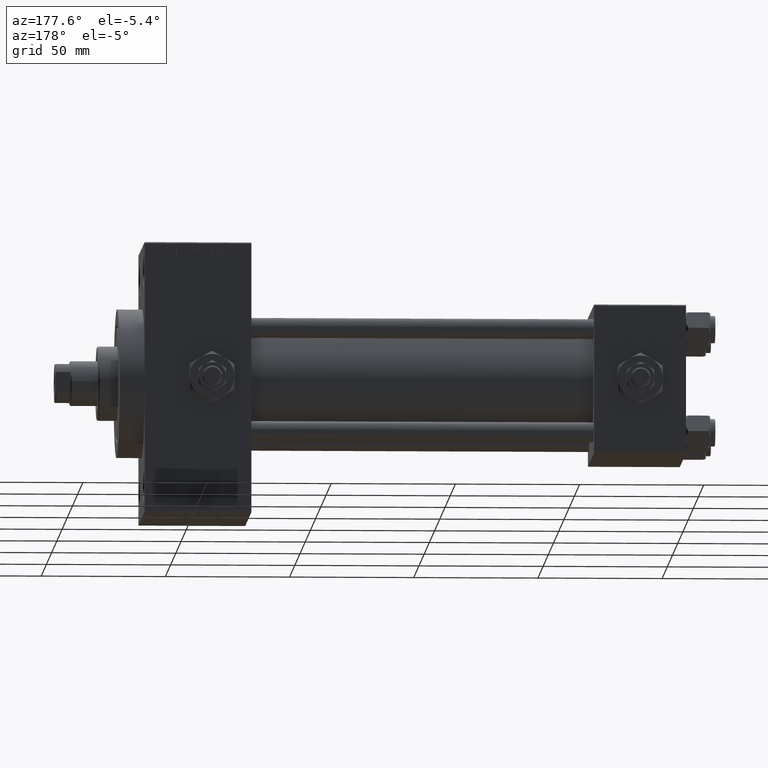
[diagram: clean part render]
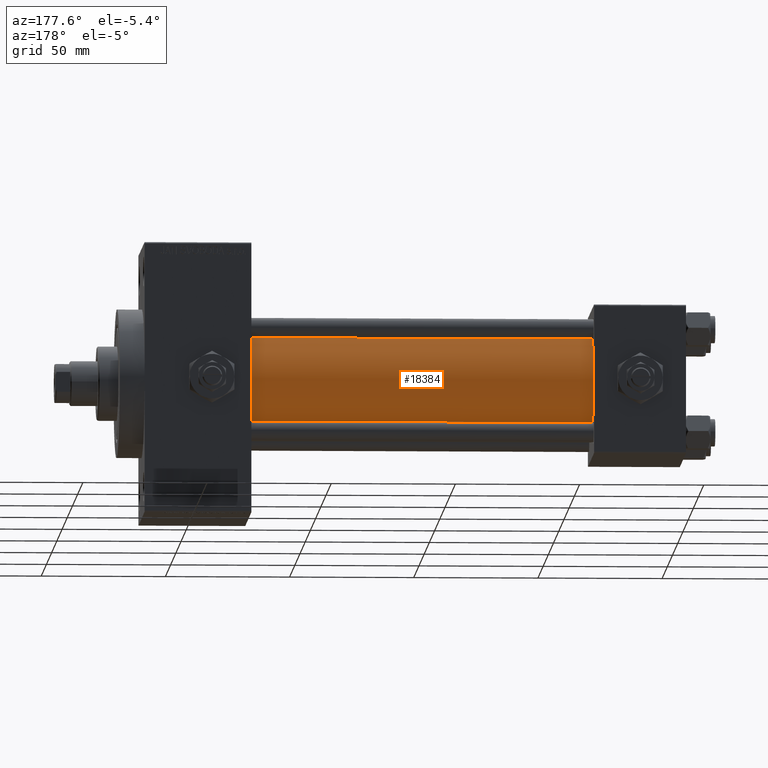
[diagram: same view with one face highlighted and labeled with its STEP entity id]
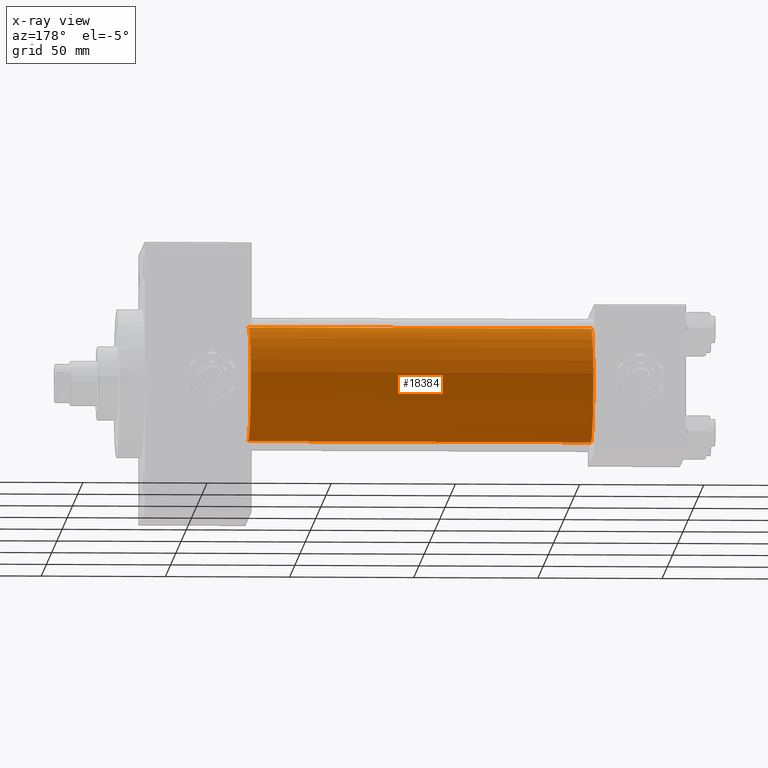
[diagram: x-ray of the same camera — body ghosted, the highlighted face saturated]
A machine part, auxiliary view. The second image highlights one B-rep face of the part: STEP entity #18384.
The next image is the same camera in x-ray: the body ghosted, the highlighted face saturated — about 0% of this face is hidden behind the body in this view.
In plain terms, the highlighted cylindrical surface (partial cylindrical patch) has radius 23 mm, axis along (-1, -0, -0).
Its self-contained STEP definition (entity closure, byte-faithful):
#877 = ORIENTED_EDGE ( 'NONE', *, *, #31477, .F. ) ;
#1100 = EDGE_CURVE ( 'NONE', #13874, #9756, #23745, .T. ) ;
#1687 = LINE ( 'NONE', #28980, #43123 ) ;
#2409 = DIRECTION ( 'NONE',  ( -1.000000000000000000, -0.000000000000000000, -0.000000000000000000 ) ) ;
#3502 = EDGE_LOOP ( 'NONE', ( #34280, #32029, #48167, #877 ) ) ;
#3702 = AXIS2_PLACEMENT_3D ( 'NONE', #28495, #20994, #20754 ) ;
#5470 = VERTEX_POINT ( 'NONE', #23716 ) ;
#7223 = CARTESIAN_POINT ( 'NONE',  ( 37.00000000000000711, -2.602085213965210642E-15, 23.00000000000000000 ) ) ;
#7828 = CARTESIAN_POINT ( 'NONE',  ( 175.0000000000000284, -2.602085213965210642E-15, 23.00000000000000000 ) ) ;
#9081 = DIRECTION ( 'NONE',  ( 0.000000000000000000, 0.000000000000000000, 1.000000000000000000 ) ) ;
#9756 = VERTEX_POINT ( 'NONE', #13198 ) ;
#10946 = DIRECTION ( 'NONE',  ( -1.000000000000000000, -0.000000000000000000, -0.000000000000000000 ) ) ;
#11689 = CARTESIAN_POINT ( 'NONE',  ( 175.0000000000000284, -2.602085213965210642E-15, 0.000000000000000000 ) ) ;
#13198 = CARTESIAN_POINT ( 'NONE',  ( 175.0000000000000284, -2.602085213965210642E-15, 23.00000000000000000 ) ) ;
#13874 = VERTEX_POINT ( 'NONE', #30096 ) ;
#15849 = LINE ( 'NONE', #7828, #46748 ) ;
#18384 = ADVANCED_FACE ( 'NONE', ( #26701 ), #41955, .T. ) ;
#20754 = DIRECTION ( 'NONE',  ( 0.000000000000000000, 0.000000000000000000, -1.000000000000000000 ) ) ;
#20994 = DIRECTION ( 'NONE',  ( 1.000000000000000000, 0.000000000000000000, 0.000000000000000000 ) ) ;
#23716 = CARTESIAN_POINT ( 'NONE',  ( 37.00000000000000711, 2.146024240737016609E-16, -23.00000000000000000 ) ) ;
#23745 = CIRCLE ( 'NONE', #3702, 23.00000000000000000 ) ;
#25137 = CIRCLE ( 'NONE', #41136, 23.00000000000000000 ) ;
#26701 = FACE_OUTER_BOUND ( 'NONE', #3502, .T. ) ;
#28495 = CARTESIAN_POINT ( 'NONE',  ( 175.0000000000000284, -2.602085213965210642E-15, 0.000000000000000000 ) ) ;
#28835 = CARTESIAN_POINT ( 'NONE',  ( 37.00000000000000711, -2.602085213965210642E-15, 0.000000000000000000 ) ) ;
#28980 = CARTESIAN_POINT ( 'NONE',  ( 175.0000000000000284, 2.146024240737016609E-16, -23.00000000000000000 ) ) ;
#29939 = EDGE_CURVE ( 'NONE', #5470, #46113, #25137, .T. ) ;
#30096 = CARTESIAN_POINT ( 'NONE',  ( 175.0000000000000284, 2.146024240737016609E-16, -23.00000000000000000 ) ) ;
#31477 = EDGE_CURVE ( 'NONE', #9756, #46113, #15849, .T. ) ;
#32029 = ORIENTED_EDGE ( 'NONE', *, *, #47036, .T. ) ;
#34280 = ORIENTED_EDGE ( 'NONE', *, *, #1100, .F. ) ;
#35864 = DIRECTION ( 'NONE',  ( 1.000000000000000000, -0.000000000000000000, 0.000000000000000000 ) ) ;
#37229 = DIRECTION ( 'NONE',  ( 0.000000000000000000, 0.000000000000000000, 1.000000000000000000 ) ) ;
#38383 = DIRECTION ( 'NONE',  ( -1.000000000000000000, -0.000000000000000000, -0.000000000000000000 ) ) ;
#41136 = AXIS2_PLACEMENT_3D ( 'NONE', #28835, #35864, #9081 ) ;
#41955 = CYLINDRICAL_SURFACE ( 'NONE', #47994, 23.00000000000000000 ) ;
#43123 = VECTOR ( 'NONE', #2409, 1000.000000000000000 ) ;
#46113 = VERTEX_POINT ( 'NONE', #7223 ) ;
#46748 = VECTOR ( 'NONE', #38383, 1000.000000000000000 ) ;
#47036 = EDGE_CURVE ( 'NONE', #13874, #5470, #1687, .T. ) ;
#47994 = AXIS2_PLACEMENT_3D ( 'NONE', #11689, #10946, #37229 ) ;
#48167 = ORIENTED_EDGE ( 'NONE', *, *, #29939, .T. ) ;